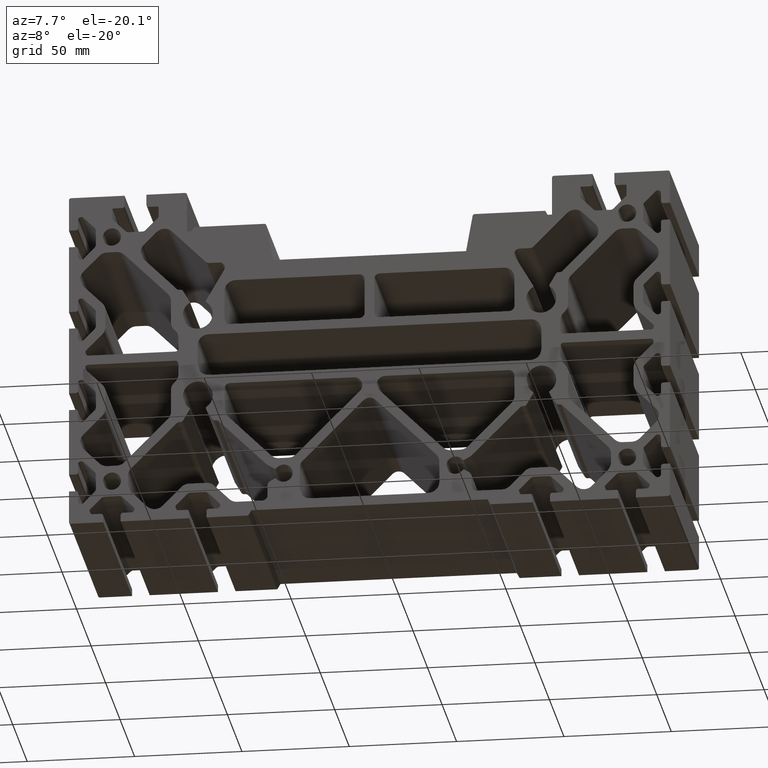
[diagram: clean part render]
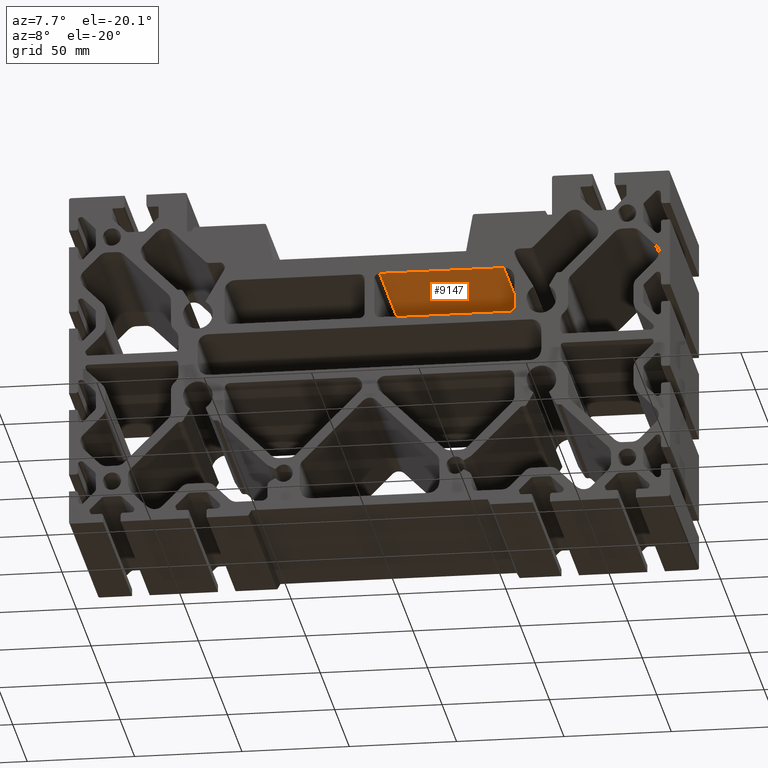
[diagram: same view with one face highlighted and labeled with its STEP entity id]
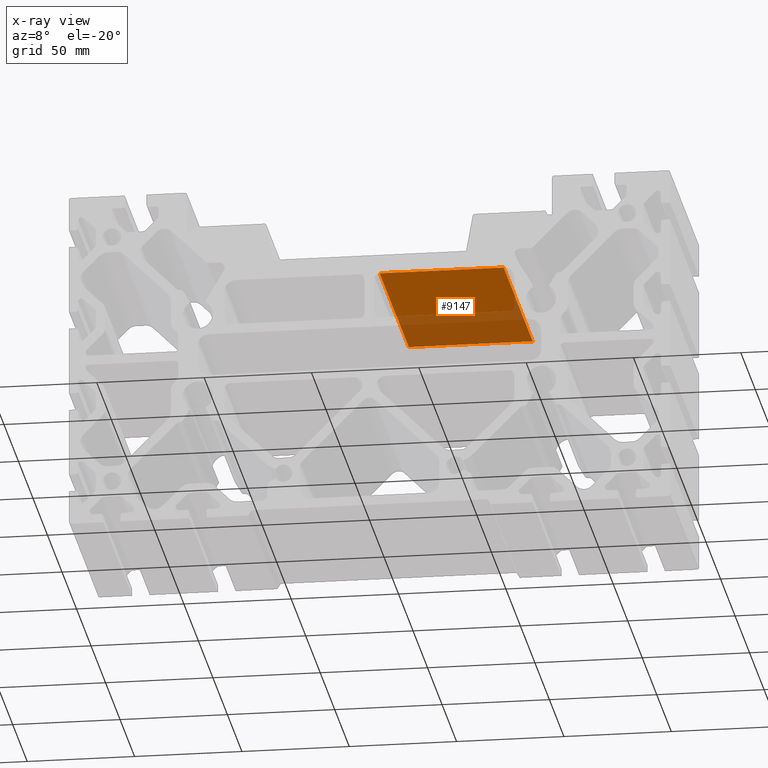
[diagram: x-ray of the same camera — body ghosted, the highlighted face saturated]
A machine part, auxiliary view. The second image highlights one B-rep face of the part: STEP entity #9147.
The next image is the same camera in x-ray: the body ghosted, the highlighted face saturated — about 42% of this face is hidden behind the body in this view.
In plain terms, the highlighted planar face has unit normal (-0, 0, -1).
Its self-contained STEP definition (entity closure, byte-faithful):
#81=PLANE('',#9704);
#362=FACE_OUTER_BOUND('',#836,.T.);
#836=EDGE_LOOP('',(#6272,#6273,#6274,#6275));
#1394=LINE('',#13641,#2364);
#1407=LINE('',#13681,#2377);
#1408=LINE('',#13684,#2378);
#1409=LINE('',#13685,#2379);
#2364=VECTOR('',#10826,10.);
#2377=VECTOR('',#10865,10.);
#2378=VECTOR('',#10870,10.);
#2379=VECTOR('',#10871,10.);
#3780=VERTEX_POINT('',#13639);
#3781=VERTEX_POINT('',#13640);
#3794=VERTEX_POINT('',#13678);
#3795=VERTEX_POINT('',#13680);
#4776=EDGE_CURVE('',#3780,#3781,#1394,.T.);
#4796=EDGE_CURVE('',#3795,#3794,#1407,.T.);
#4798=EDGE_CURVE('',#3794,#3780,#1408,.T.);
#4799=EDGE_CURVE('',#3781,#3795,#1409,.T.);
#6272=ORIENTED_EDGE('',*,*,#4796,.T.);
#6273=ORIENTED_EDGE('',*,*,#4798,.T.);
#6274=ORIENTED_EDGE('',*,*,#4776,.T.);
#6275=ORIENTED_EDGE('',*,*,#4799,.T.);
#9147=ADVANCED_FACE('',(#362),#81,.T.);
#9704=AXIS2_PLACEMENT_3D('',#13683,#10868,#10869);
#10826=DIRECTION('',(0.,-1.,0.));
#10865=DIRECTION('',(0.,1.,0.));
#10868=DIRECTION('center_axis',(-1.06376347528617E-15,0.,-1.));
#10869=DIRECTION('ref_axis',(-1.,0.,1.06376347528617E-15));
#10870=DIRECTION('',(1.,0.,-1.06376347528617E-15));
#10871=DIRECTION('',(-1.,0.,1.06376347528617E-15));
#13639=CARTESIAN_POINT('',(62.5000000000002,50.,36.0000000106156));
#13640=CARTESIAN_POINT('',(62.5000000000002,-50.,36.0000000106156));
#13641=CARTESIAN_POINT('',(62.5000000000002,0.,36.0000000106156));
#13678=CARTESIAN_POINT('',(4.7500000000001,50.,36.0000000106157));
#13680=CARTESIAN_POINT('',(4.7500000000001,-50.,36.0000000106157));
#13681=CARTESIAN_POINT('',(4.7500000000001,0.,36.0000000106157));
#13683=CARTESIAN_POINT('Origin',(62.5000000000002,0.,36.0000000106156));
#13684=CARTESIAN_POINT('',(71.5612552686596,50.,36.0000000106156));
#13685=CARTESIAN_POINT('',(71.5612552686596,-50.,36.0000000106156));